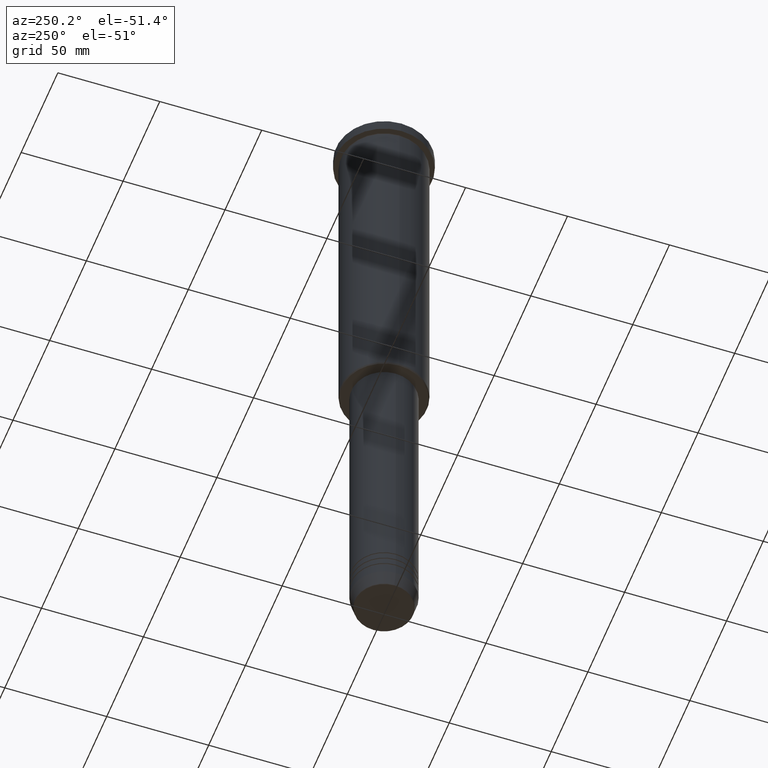
[diagram: clean part render]
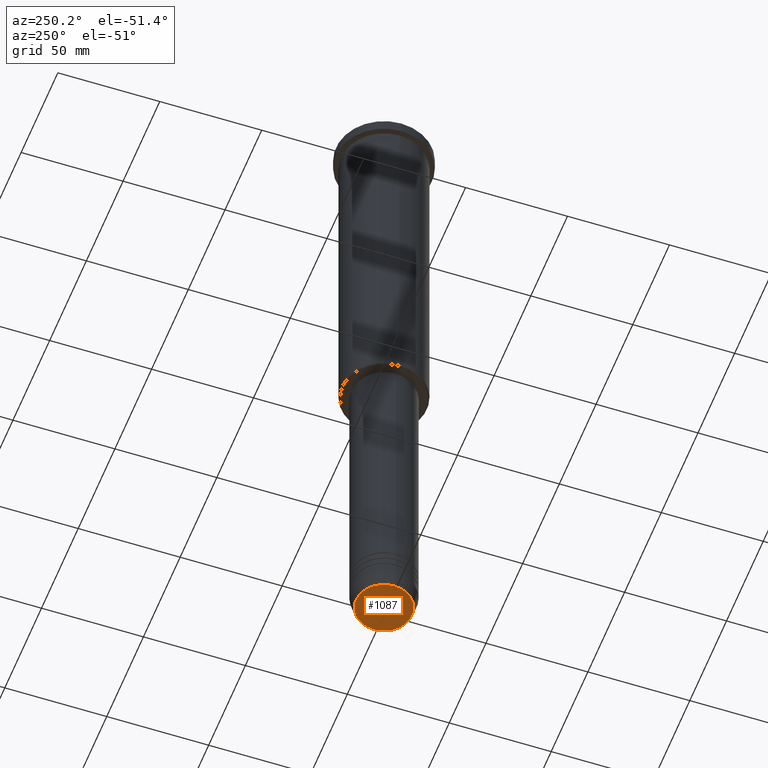
[diagram: same view with one face highlighted and labeled with its STEP entity id]
A machine part, auxiliary view. The second image highlights one B-rep face of the part: STEP entity #1087.
In plain terms, the highlighted planar face has unit normal (0, -0, 1).
Its self-contained STEP definition (entity closure, byte-faithful):
#68 = DIRECTION ( 'NONE',  ( 1.000000000000000000, 0.000000000000000000, 0.000000000000000000 ) ) ;
#70 = PLANE ( 'NONE',  #786 ) ;
#149 = DIRECTION ( 'NONE',  ( 0.000000000000000000, 0.000000000000000000, -1.000000000000000000 ) ) ;
#151 = FACE_OUTER_BOUND ( 'NONE', #977, .T. ) ;
#162 = CARTESIAN_POINT ( 'NONE',  ( -13.74069215899265828, 1.712322416342415986E-15, -331.0000000000000000 ) ) ;
#182 = DIRECTION ( 'NONE',  ( 1.000000000000000000, 0.000000000000000000, 0.000000000000000000 ) ) ;
#229 = EDGE_CURVE ( 'NONE', #610, #1122, #939, .T. ) ;
#250 = DIRECTION ( 'NONE',  ( 1.000000000000000000, 0.000000000000000000, 0.000000000000000000 ) ) ;
#324 = CARTESIAN_POINT ( 'NONE',  ( 0.000000000000000000, 0.000000000000000000, -331.0000000000000000 ) ) ;
#416 = CARTESIAN_POINT ( 'NONE',  ( 0.000000000000000000, 0.000000000000000000, -331.0000000000000000 ) ) ;
#610 = VERTEX_POINT ( 'NONE', #162 ) ;
#636 = ORIENTED_EDGE ( 'NONE', *, *, #755, .T. ) ;
#727 = CARTESIAN_POINT ( 'NONE',  ( 0.000000000000000000, 0.000000000000000000, -331.0000000000000000 ) ) ;
#750 = AXIS2_PLACEMENT_3D ( 'NONE', #324, #149, #68 ) ;
#755 = EDGE_CURVE ( 'NONE', #1122, #610, #976, .T. ) ;
#784 = AXIS2_PLACEMENT_3D ( 'NONE', #727, #1110, #182 ) ;
#786 = AXIS2_PLACEMENT_3D ( 'NONE', #416, #1072, #250 ) ;
#843 = ORIENTED_EDGE ( 'NONE', *, *, #229, .T. ) ;
#918 = CARTESIAN_POINT ( 'NONE',  ( 13.74069215899265828, 0.000000000000000000, -331.0000000000000000 ) ) ;
#939 = CIRCLE ( 'NONE', #750, 13.74069215899265828 ) ;
#976 = CIRCLE ( 'NONE', #784, 13.74069215899265828 ) ;
#977 = EDGE_LOOP ( 'NONE', ( #636, #843 ) ) ;
#1072 = DIRECTION ( 'NONE',  ( 0.000000000000000000, -0.000000000000000000, 1.000000000000000000 ) ) ;
#1087 = ADVANCED_FACE ( 'NONE', ( #151 ), #70, .F. ) ;
#1110 = DIRECTION ( 'NONE',  ( 0.000000000000000000, 0.000000000000000000, -1.000000000000000000 ) ) ;
#1122 = VERTEX_POINT ( 'NONE', #918 ) ;